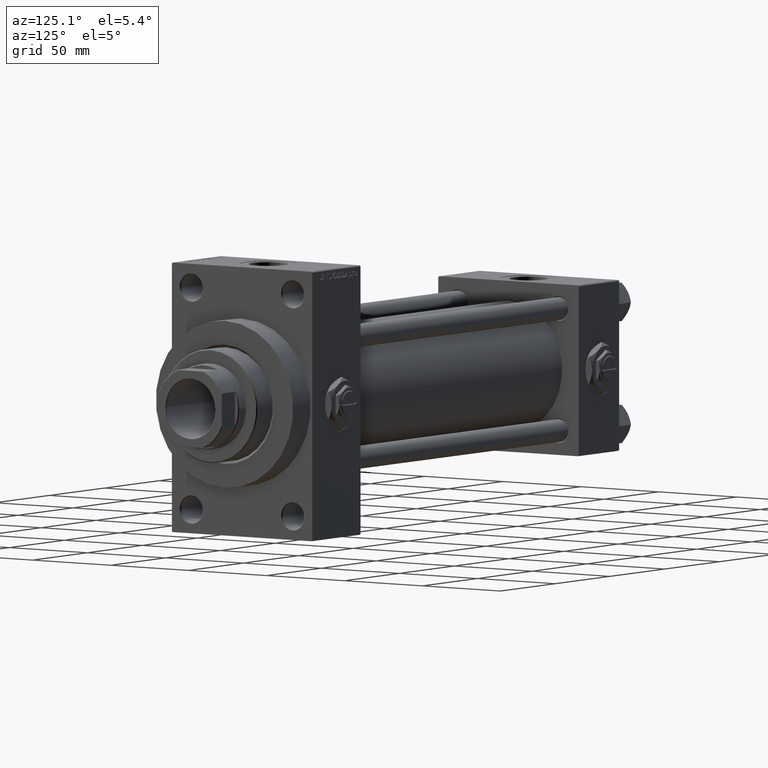
[diagram: clean part render]
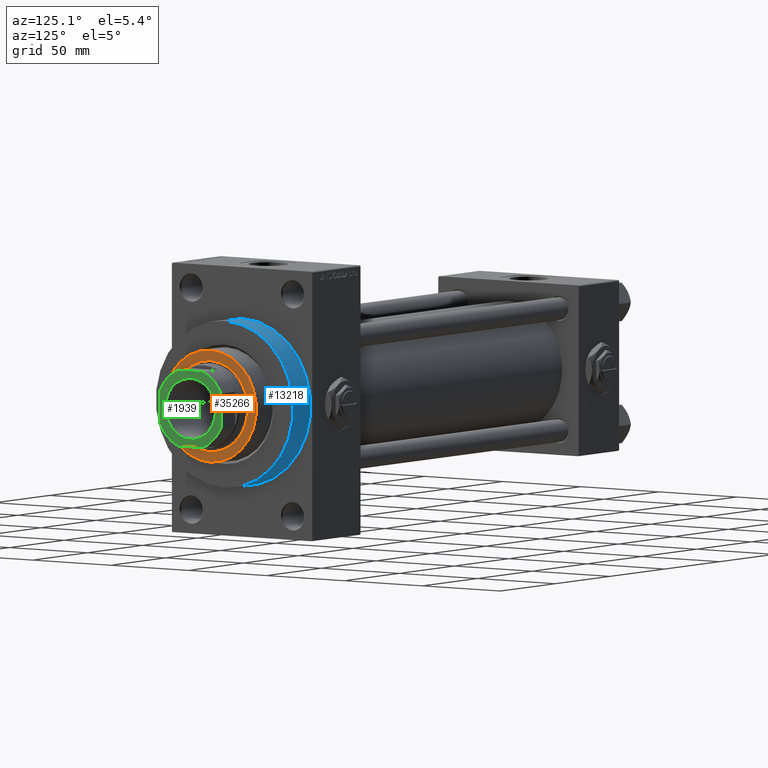
[diagram: same view with three faces highlighted in distinct colors, each labeled with its STEP entity id]
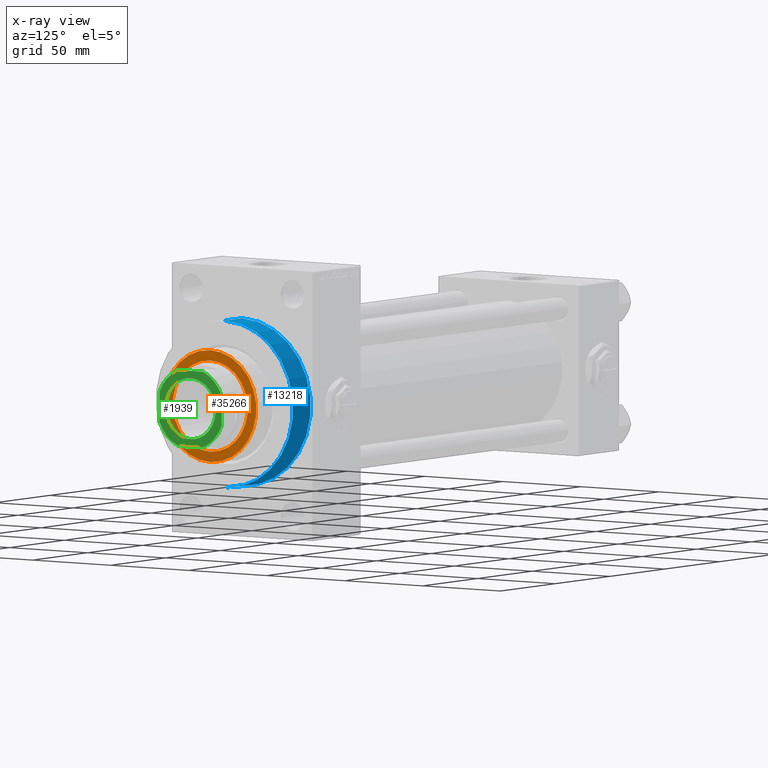
[diagram: x-ray of the same camera — body ghosted, the three highlighted faces saturated]
A machine part, auxiliary view with three faces highlighted in distinct colors.
The next image is the same camera in x-ray (body ghosted, the three faces saturated) — at least one of them is partly hidden behind the body in this view.
Their STEP definitions:

[orange] entity #35266 — the highlighted planar face has unit normal (1, -0, -0).
#527 = EDGE_CURVE ( 'NONE', #5664, #42108, #24770, .T. ) ;
#1087 = CIRCLE ( 'NONE', #13803, 24.00000000000000355 ) ;
#1458 = CARTESIAN_POINT ( 'NONE',  ( 24.00000000000000355, 0.000000000000000000, 56.25999999999999801 ) ) ;
#4818 = EDGE_CURVE ( 'NONE', #30587, #46900, #1087, .T. ) ;
#5035 = DIRECTION ( 'NONE',  ( 0.000000000000000000, 0.000000000000000000, 1.000000000000000000 ) ) ;
#5664 = VERTEX_POINT ( 'NONE', #14105 ) ;
#5847 = DIRECTION ( 'NONE',  ( 0.000000000000000000, 0.000000000000000000, 1.000000000000000000 ) ) ;
#6466 = DIRECTION ( 'NONE',  ( 1.000000000000000000, 0.000000000000000000, 0.000000000000000000 ) ) ;
#8041 = EDGE_LOOP ( 'NONE', ( #40279, #22566 ) ) ;
#10313 = DIRECTION ( 'NONE',  ( 0.000000000000000000, 0.000000000000000000, 1.000000000000000000 ) ) ;
#10594 = FACE_BOUND ( 'NONE', #32987, .T. ) ;
#10837 = CARTESIAN_POINT ( 'NONE',  ( 0.000000000000000000, 0.000000000000000000, 56.25999999999999801 ) ) ;
#13803 = AXIS2_PLACEMENT_3D ( 'NONE', #31684, #5035, #24229 ) ;
#14086 = FACE_OUTER_BOUND ( 'NONE', #8041, .T. ) ;
#14105 = CARTESIAN_POINT ( 'NONE',  ( -29.50000000000001066, 0.000000000000000000, 56.25999999999999801 ) ) ;
#14656 = EDGE_CURVE ( 'NONE', #46900, #30587, #30755, .T. ) ;
#15768 = CIRCLE ( 'NONE', #43616, 29.50000000000001066 ) ;
#17077 = CARTESIAN_POINT ( 'NONE',  ( 0.000000000000000000, 0.000000000000000000, 56.25999999999999801 ) ) ;
#22024 = AXIS2_PLACEMENT_3D ( 'NONE', #43721, #10313, #36971 ) ;
#22566 = ORIENTED_EDGE ( 'NONE', *, *, #42662, .T. ) ;
#22705 = CARTESIAN_POINT ( 'NONE',  ( -24.00000000000000355, 2.939152317953648289E-15, 56.25999999999999801 ) ) ;
#24229 = DIRECTION ( 'NONE',  ( 1.000000000000000000, 0.000000000000000000, 0.000000000000000000 ) ) ;
#24770 = CIRCLE ( 'NONE', #39059, 29.50000000000001066 ) ;
#25404 = DIRECTION ( 'NONE',  ( 0.000000000000000000, 0.000000000000000000, 1.000000000000000000 ) ) ;
#25799 = DIRECTION ( 'NONE',  ( 0.000000000000000000, 0.000000000000000000, 1.000000000000000000 ) ) ;
#28279 = ORIENTED_EDGE ( 'NONE', *, *, #14656, .F. ) ;
#29908 = ORIENTED_EDGE ( 'NONE', *, *, #4818, .F. ) ;
#30587 = VERTEX_POINT ( 'NONE', #22705 ) ;
#30755 = CIRCLE ( 'NONE', #22024, 24.00000000000000355 ) ;
#31684 = CARTESIAN_POINT ( 'NONE',  ( 0.000000000000000000, 0.000000000000000000, 56.25999999999999801 ) ) ;
#32987 = EDGE_LOOP ( 'NONE', ( #28279, #29908 ) ) ;
#35266 = ADVANCED_FACE ( 'NONE', ( #10594, #14086 ), #37247, .T. ) ;
#36124 = CARTESIAN_POINT ( 'NONE',  ( 0.000000000000000000, 0.000000000000000000, 56.25999999999999801 ) ) ;
#36971 = DIRECTION ( 'NONE',  ( 1.000000000000000000, 0.000000000000000000, 0.000000000000000000 ) ) ;
#37180 = CARTESIAN_POINT ( 'NONE',  ( 29.50000000000001066, 3.643324227463376180E-15, 56.25999999999999801 ) ) ;
#37247 = PLANE ( 'NONE',  #37675 ) ;
#37492 = DIRECTION ( 'NONE',  ( 1.000000000000000000, 0.000000000000000000, -0.000000000000000000 ) ) ;
#37675 = AXIS2_PLACEMENT_3D ( 'NONE', #10837, #25799, #37492 ) ;
#39059 = AXIS2_PLACEMENT_3D ( 'NONE', #36124, #25404, #6466 ) ;
#40279 = ORIENTED_EDGE ( 'NONE', *, *, #527, .T. ) ;
#42108 = VERTEX_POINT ( 'NONE', #37180 ) ;
#42662 = EDGE_CURVE ( 'NONE', #42108, #5664, #15768, .T. ) ;
#43616 = AXIS2_PLACEMENT_3D ( 'NONE', #17077, #5847, #47218 ) ;
#43721 = CARTESIAN_POINT ( 'NONE',  ( 0.000000000000000000, 0.000000000000000000, 56.25999999999999801 ) ) ;
#46900 = VERTEX_POINT ( 'NONE', #1458 ) ;
#47218 = DIRECTION ( 'NONE',  ( 1.000000000000000000, 0.000000000000000000, 0.000000000000000000 ) ) ;

[blue] entity #13218 — the highlighted cylindrical surface (partial cylindrical patch) has radius 44 mm, axis along (-1, -0, -0).
#690 = AXIS2_PLACEMENT_3D ( 'NONE', #11416, #4196, #30360 ) ;
#1927 = VERTEX_POINT ( 'NONE', #9789 ) ;
#3735 = LINE ( 'NONE', #30394, #34500 ) ;
#4196 = DIRECTION ( 'NONE',  ( 1.000000000000000000, 0.000000000000000000, 0.000000000000000000 ) ) ;
#4983 = EDGE_LOOP ( 'NONE', ( #12396, #5681, #39558, #43959 ) ) ;
#5681 = ORIENTED_EDGE ( 'NONE', *, *, #39221, .T. ) ;
#6683 = VERTEX_POINT ( 'NONE', #39856 ) ;
#7612 = AXIS2_PLACEMENT_3D ( 'NONE', #9506, #21719, #36401 ) ;
#8126 = LINE ( 'NONE', #35261, #42350 ) ;
#9506 = CARTESIAN_POINT ( 'NONE',  ( 296.0000000000000568, 0.000000000000000000, 0.000000000000000000 ) ) ;
#9789 = CARTESIAN_POINT ( 'NONE',  ( 296.0000000000000568, 5.388445916248353619E-15, -44.00000000000000000 ) ) ;
#11416 = CARTESIAN_POINT ( 'NONE',  ( 280.0000000000000000, 0.000000000000000000, 0.000000000000000000 ) ) ;
#12396 = ORIENTED_EDGE ( 'NONE', *, *, #17081, .F. ) ;
#13218 = ADVANCED_FACE ( 'NONE', ( #24959 ), #33396, .T. ) ;
#14108 = AXIS2_PLACEMENT_3D ( 'NONE', #21718, #44627, #33395 ) ;
#17081 = EDGE_CURVE ( 'NONE', #1927, #45539, #23657, .T. ) ;
#18472 = CARTESIAN_POINT ( 'NONE',  ( 296.0000000000000568, 0.000000000000000000, 44.00000000000000000 ) ) ;
#21718 = CARTESIAN_POINT ( 'NONE',  ( 296.0000000000000568, 0.000000000000000000, 0.000000000000000000 ) ) ;
#21719 = DIRECTION ( 'NONE',  ( -1.000000000000000000, -0.000000000000000000, -0.000000000000000000 ) ) ;
#22174 = CIRCLE ( 'NONE', #690, 44.00000000000000000 ) ;
#23657 = CIRCLE ( 'NONE', #14108, 44.00000000000000000 ) ;
#24959 = FACE_OUTER_BOUND ( 'NONE', #4983, .T. ) ;
#30360 = DIRECTION ( 'NONE',  ( 0.000000000000000000, 0.000000000000000000, -1.000000000000000000 ) ) ;
#30394 = CARTESIAN_POINT ( 'NONE',  ( 296.0000000000000568, 5.388445916248353619E-15, -44.00000000000000000 ) ) ;
#32471 = EDGE_CURVE ( 'NONE', #45539, #6683, #8126, .T. ) ;
#33395 = DIRECTION ( 'NONE',  ( 0.000000000000000000, 0.000000000000000000, -1.000000000000000000 ) ) ;
#33396 = CYLINDRICAL_SURFACE ( 'NONE', #7612, 44.00000000000000000 ) ;
#34500 = VECTOR ( 'NONE', #48835, 1000.000000000000000 ) ;
#35261 = CARTESIAN_POINT ( 'NONE',  ( 296.0000000000000568, 0.000000000000000000, 44.00000000000000000 ) ) ;
#36401 = DIRECTION ( 'NONE',  ( 0.000000000000000000, 0.000000000000000000, 1.000000000000000000 ) ) ;
#38125 = VERTEX_POINT ( 'NONE', #42892 ) ;
#39221 = EDGE_CURVE ( 'NONE', #1927, #38125, #3735, .T. ) ;
#39558 = ORIENTED_EDGE ( 'NONE', *, *, #43169, .T. ) ;
#39856 = CARTESIAN_POINT ( 'NONE',  ( 280.0000000000000000, 0.000000000000000000, 44.00000000000000000 ) ) ;
#42350 = VECTOR ( 'NONE', #42750, 1000.000000000000000 ) ;
#42750 = DIRECTION ( 'NONE',  ( -1.000000000000000000, -0.000000000000000000, -0.000000000000000000 ) ) ;
#42892 = CARTESIAN_POINT ( 'NONE',  ( 280.0000000000000000, 5.388445916248353619E-15, -44.00000000000000000 ) ) ;
#43169 = EDGE_CURVE ( 'NONE', #38125, #6683, #22174, .T. ) ;
#43959 = ORIENTED_EDGE ( 'NONE', *, *, #32471, .F. ) ;
#44627 = DIRECTION ( 'NONE',  ( 1.000000000000000000, 0.000000000000000000, 0.000000000000000000 ) ) ;
#45539 = VERTEX_POINT ( 'NONE', #18472 ) ;
#48835 = DIRECTION ( 'NONE',  ( -1.000000000000000000, -0.000000000000000000, -0.000000000000000000 ) ) ;

[green] entity #1939 — the highlighted planar face has unit normal (1, 0, 0).
#182 = CARTESIAN_POINT ( 'NONE',  ( 0.000000000000000000, 0.000000000000000000, 290.0000000000000000 ) ) ;
#757 = VERTEX_POINT ( 'NONE', #12585 ) ;
#783 = ORIENTED_EDGE ( 'NONE', *, *, #44855, .T. ) ;
#1689 = VERTEX_POINT ( 'NONE', #41274 ) ;
#1939 = ADVANCED_FACE ( 'NONE', ( #10768, #25971 ), #47664, .T. ) ;
#2282 = EDGE_LOOP ( 'NONE', ( #41845, #32679 ) ) ;
#2330 = CARTESIAN_POINT ( 'NONE',  ( 20.00000000000000000, 7.889866919029710601, 290.0000000000000000 ) ) ;
#3424 = AXIS2_PLACEMENT_3D ( 'NONE', #13038, #19109, #24270 ) ;
#7032 = DIRECTION ( 'NONE',  ( -0.000000000000000000, 0.000000000000000000, 1.000000000000000000 ) ) ;
#8144 = CARTESIAN_POINT ( 'NONE',  ( 20.00000000000000000, -7.889866919029691061, 290.0000000000000000 ) ) ;
#8401 = EDGE_CURVE ( 'NONE', #39275, #39595, #9148, .T. ) ;
#8669 = CIRCLE ( 'NONE', #36508, 21.50000000000000355 ) ;
#8702 = VECTOR ( 'NONE', #27972, 1000.000000000000000 ) ;
#9093 = EDGE_CURVE ( 'NONE', #757, #36156, #10398, .T. ) ;
#9148 = CIRCLE ( 'NONE', #31410, 16.05000000000006466 ) ;
#10129 = VERTEX_POINT ( 'NONE', #8144 ) ;
#10398 = LINE ( 'NONE', #48760, #25755 ) ;
#10768 = FACE_BOUND ( 'NONE', #2282, .T. ) ;
#10888 = DIRECTION ( 'NONE',  ( 1.000000000000000000, 0.000000000000000000, 0.000000000000000000 ) ) ;
#11033 = DIRECTION ( 'NONE',  ( -0.000000000000000000, 0.000000000000000000, 1.000000000000000000 ) ) ;
#11804 = DIRECTION ( 'NONE',  ( 1.000000000000000000, 0.000000000000000000, 0.000000000000000000 ) ) ;
#12442 = AXIS2_PLACEMENT_3D ( 'NONE', #32740, #24784, #17796 ) ;
#12585 = CARTESIAN_POINT ( 'NONE',  ( -7.889866919029763004, -20.00000000000000000, 290.0000000000000000 ) ) ;
#12654 = AXIS2_PLACEMENT_3D ( 'NONE', #182, #45763, #23105 ) ;
#12661 = VECTOR ( 'NONE', #48885, 1000.000000000000000 ) ;
#12864 = CARTESIAN_POINT ( 'NONE',  ( 7.889866919029696390, -20.00000000000000000, 290.0000000000000000 ) ) ;
#13038 = CARTESIAN_POINT ( 'NONE',  ( 0.000000000000000000, 0.000000000000000000, 290.0000000000000000 ) ) ;
#14639 = EDGE_CURVE ( 'NONE', #17911, #28643, #37906, .T. ) ;
#15687 = CARTESIAN_POINT ( 'NONE',  ( 0.000000000000000000, 0.000000000000000000, 290.0000000000000000 ) ) ;
#16971 = CIRCLE ( 'NONE', #3424, 21.49999999999998579 ) ;
#17006 = LINE ( 'NONE', #17257, #8702 ) ;
#17257 = CARTESIAN_POINT ( 'NONE',  ( 19.99999999999999645, 20.00000000000000000, 290.0000000000000000 ) ) ;
#17796 = DIRECTION ( 'NONE',  ( 1.000000000000000000, 0.000000000000000000, 0.000000000000000000 ) ) ;
#17911 = VERTEX_POINT ( 'NONE', #18467 ) ;
#18467 = CARTESIAN_POINT ( 'NONE',  ( -7.889866919029755898, 20.00000000000000000, 290.0000000000000000 ) ) ;
#18738 = LINE ( 'NONE', #48639, #12661 ) ;
#19109 = DIRECTION ( 'NONE',  ( -0.000000000000000000, 0.000000000000000000, 1.000000000000000000 ) ) ;
#19123 = CIRCLE ( 'NONE', #28696, 21.49999999999998224 ) ;
#19578 = ORIENTED_EDGE ( 'NONE', *, *, #34870, .T. ) ;
#20717 = CARTESIAN_POINT ( 'NONE',  ( 7.889866919029708825, 20.00000000000000000, 290.0000000000000000 ) ) ;
#21979 = EDGE_CURVE ( 'NONE', #1689, #757, #8669, .T. ) ;
#22236 = DIRECTION ( 'NONE',  ( 1.000000000000000000, 0.000000000000000000, 0.000000000000000000 ) ) ;
#22576 = EDGE_CURVE ( 'NONE', #10129, #35744, #17006, .T. ) ;
#23105 = DIRECTION ( 'NONE',  ( 1.000000000000000000, 0.000000000000000000, 0.000000000000000000 ) ) ;
#24270 = DIRECTION ( 'NONE',  ( 1.000000000000000000, 0.000000000000000000, 0.000000000000000000 ) ) ;
#24402 = CARTESIAN_POINT ( 'NONE',  ( -20.00000000000000000, 7.889866919029752346, 290.0000000000000000 ) ) ;
#24460 = ORIENTED_EDGE ( 'NONE', *, *, #9093, .T. ) ;
#24784 = DIRECTION ( 'NONE',  ( -0.000000000000000000, 0.000000000000000000, 1.000000000000000000 ) ) ;
#24954 = VECTOR ( 'NONE', #42092, 1000.000000000000000 ) ;
#25755 = VECTOR ( 'NONE', #10888, 1000.000000000000000 ) ;
#25971 = FACE_OUTER_BOUND ( 'NONE', #43097, .T. ) ;
#26534 = CARTESIAN_POINT ( 'NONE',  ( 0.000000000000000000, 0.000000000000000000, 290.0000000000000000 ) ) ;
#27867 = EDGE_CURVE ( 'NONE', #36156, #10129, #19123, .T. ) ;
#27972 = DIRECTION ( 'NONE',  ( -1.734723475976807094E-16, 1.000000000000000000, -0.000000000000000000 ) ) ;
#28643 = VERTEX_POINT ( 'NONE', #24402 ) ;
#28696 = AXIS2_PLACEMENT_3D ( 'NONE', #29974, #11033, #30214 ) ;
#29974 = CARTESIAN_POINT ( 'NONE',  ( 0.000000000000000000, 0.000000000000000000, 290.0000000000000000 ) ) ;
#30214 = DIRECTION ( 'NONE',  ( 1.000000000000000000, 0.000000000000000000, 0.000000000000000000 ) ) ;
#30252 = DIRECTION ( 'NONE',  ( -0.000000000000000000, 0.000000000000000000, 1.000000000000000000 ) ) ;
#30636 = LINE ( 'NONE', #30870, #24954 ) ;
#30870 = CARTESIAN_POINT ( 'NONE',  ( -20.00000000000000355, 20.00000000000000000, 290.0000000000000000 ) ) ;
#31410 = AXIS2_PLACEMENT_3D ( 'NONE', #15687, #37597, #45326 ) ;
#32500 = ORIENTED_EDGE ( 'NONE', *, *, #34168, .T. ) ;
#32679 = ORIENTED_EDGE ( 'NONE', *, *, #48002, .T. ) ;
#32740 = CARTESIAN_POINT ( 'NONE',  ( 0.000000000000000000, 0.000000000000000000, 290.0000000000000000 ) ) ;
#34168 = EDGE_CURVE ( 'NONE', #35744, #42266, #16971, .T. ) ;
#34870 = EDGE_CURVE ( 'NONE', #42266, #17911, #30636, .T. ) ;
#35744 = VERTEX_POINT ( 'NONE', #2330 ) ;
#36156 = VERTEX_POINT ( 'NONE', #12864 ) ;
#36508 = AXIS2_PLACEMENT_3D ( 'NONE', #26534, #30252, #11804 ) ;
#37097 = ORIENTED_EDGE ( 'NONE', *, *, #14639, .T. ) ;
#37597 = DIRECTION ( 'NONE',  ( 0.000000000000000000, -0.000000000000000000, -1.000000000000000000 ) ) ;
#37906 = CIRCLE ( 'NONE', #12442, 21.50000000000000000 ) ;
#38611 = CARTESIAN_POINT ( 'NONE',  ( 16.05000000000006466, 0.000000000000000000, 290.0000000000000000 ) ) ;
#39275 = VERTEX_POINT ( 'NONE', #38611 ) ;
#39595 = VERTEX_POINT ( 'NONE', #46760 ) ;
#41150 = ORIENTED_EDGE ( 'NONE', *, *, #27867, .T. ) ;
#41158 = CARTESIAN_POINT ( 'NONE',  ( 0.000000000000000000, 0.000000000000000000, 290.0000000000000000 ) ) ;
#41274 = CARTESIAN_POINT ( 'NONE',  ( -20.00000000000000000, -7.889866919029765668, 290.0000000000000000 ) ) ;
#41845 = ORIENTED_EDGE ( 'NONE', *, *, #8401, .T. ) ;
#42077 = CIRCLE ( 'NONE', #12654, 16.05000000000006466 ) ;
#42092 = DIRECTION ( 'NONE',  ( -1.000000000000000000, -0.000000000000000000, -0.000000000000000000 ) ) ;
#42266 = VERTEX_POINT ( 'NONE', #20717 ) ;
#42903 = ORIENTED_EDGE ( 'NONE', *, *, #22576, .T. ) ;
#43097 = EDGE_LOOP ( 'NONE', ( #42903, #32500, #19578, #37097, #783, #44886, #24460, #41150 ) ) ;
#44721 = AXIS2_PLACEMENT_3D ( 'NONE', #41158, #7032, #22236 ) ;
#44855 = EDGE_CURVE ( 'NONE', #28643, #1689, #18738, .T. ) ;
#44886 = ORIENTED_EDGE ( 'NONE', *, *, #21979, .T. ) ;
#45326 = DIRECTION ( 'NONE',  ( 1.000000000000000000, 0.000000000000000000, 0.000000000000000000 ) ) ;
#45763 = DIRECTION ( 'NONE',  ( 0.000000000000000000, -0.000000000000000000, -1.000000000000000000 ) ) ;
#46760 = CARTESIAN_POINT ( 'NONE',  ( -16.05000000000006466, 1.965558112631510093E-15, 290.0000000000000000 ) ) ;
#47664 = PLANE ( 'NONE',  #44721 ) ;
#48002 = EDGE_CURVE ( 'NONE', #39595, #39275, #42077, .T. ) ;
#48639 = CARTESIAN_POINT ( 'NONE',  ( -20.00000000000000355, 20.00000000000000000, 290.0000000000000000 ) ) ;
#48760 = CARTESIAN_POINT ( 'NONE',  ( -19.99999999999999645, -20.00000000000000000, 290.0000000000000000 ) ) ;
#48885 = DIRECTION ( 'NONE',  ( 1.734723475976807094E-16, -1.000000000000000000, 0.000000000000000000 ) ) ;